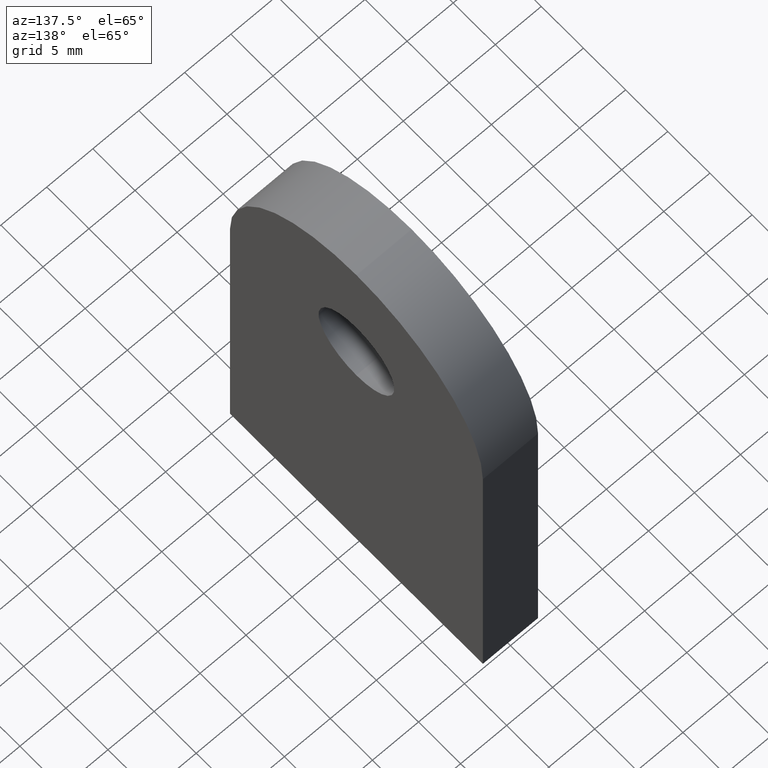
[diagram: clean part render]
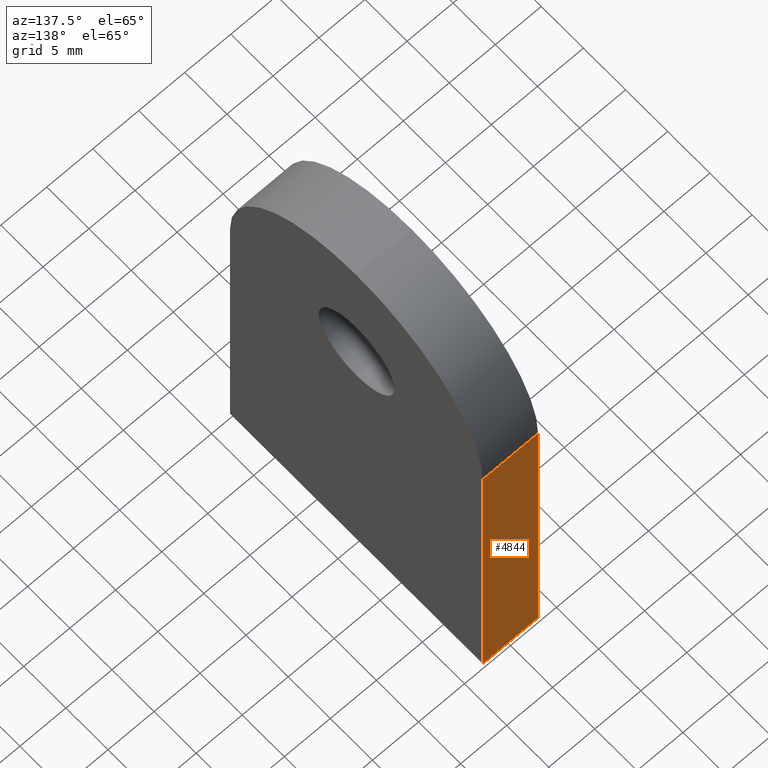
[diagram: same view with one face highlighted and labeled with its STEP entity id]
A machine part, auxiliary view. The second image highlights one B-rep face of the part: STEP entity #4844.
In plain terms, the highlighted planar face has unit normal (-0, 1, 0).
Its self-contained STEP definition (entity closure, byte-faithful):
#279 = CARTESIAN_POINT ( 'NONE',  ( 3.000000000000000000, 15.00000000000000000, -3.061616997868383000E-015 ) ) ;
#1423 = EDGE_CURVE ( 'NONE', #7588, #4917, #6426, .T. ) ;
#2302 = DIRECTION ( 'NONE',  ( 0.0000000000000000000, 4.956352788505163400E-017, -1.000000000000000000 ) ) ;
#4240 = CARTESIAN_POINT ( 'NONE',  ( 3.000000000000000000, 14.99999999999999800, 34.99999999999999300 ) ) ;
#4279 = FACE_OUTER_BOUND ( 'NONE', #11081, .T. ) ;
#4642 = ORIENTED_EDGE ( 'NONE', *, *, #1423, .T. ) ;
#4725 = CARTESIAN_POINT ( 'NONE',  ( 3.000000000000000000, 15.00000000000000000, -3.061616997868383000E-015 ) ) ;
#4844 = ADVANCED_FACE ( 'NONE', ( #4279 ), #9749, .T. ) ;
#4917 = VERTEX_POINT ( 'NONE', #10809 ) ;
#5012 = CARTESIAN_POINT ( 'NONE',  ( 3.000000000000000000, 14.99999999999999800, 34.99999999999999300 ) ) ;
#5058 = DIRECTION ( 'NONE',  ( 0.0000000000000000000, -4.956352788505162800E-017, 1.000000000000000000 ) ) ;
#5290 = EDGE_CURVE ( 'NONE', #6488, #4917, #12214, .T. ) ;
#5378 = LINE ( 'NONE', #8521, #7600 ) ;
#5937 = EDGE_CURVE ( 'NONE', #11702, #7588, #6522, .T. ) ;
#6210 = VECTOR ( 'NONE', #2302, 1000.000000000000000 ) ;
#6426 = LINE ( 'NONE', #4725, #10606 ) ;
#6488 = VERTEX_POINT ( 'NONE', #6605 ) ;
#6522 = LINE ( 'NONE', #4240, #6210 ) ;
#6605 = CARTESIAN_POINT ( 'NONE',  ( -3.000000000000000000, 14.99999999999999800, 34.99999999999999300 ) ) ;
#7122 = VECTOR ( 'NONE', #11334, 1000.000000000000000 ) ;
#7191 = AXIS2_PLACEMENT_3D ( 'NONE', #5012, #9826, #5058 ) ;
#7588 = VERTEX_POINT ( 'NONE', #279 ) ;
#7600 = VECTOR ( 'NONE', #10385, 1000.000000000000000 ) ;
#8521 = CARTESIAN_POINT ( 'NONE',  ( 3.000000000000000000, 14.99999999999999800, 34.99999999999999300 ) ) ;
#9413 = CARTESIAN_POINT ( 'NONE',  ( -3.000000000000000000, 14.99999999999999800, 34.99999999999999300 ) ) ;
#9683 = ORIENTED_EDGE ( 'NONE', *, *, #5290, .F. ) ;
#9749 = PLANE ( 'NONE',  #7191 ) ;
#9826 = DIRECTION ( 'NONE',  ( -0.0000000000000000000, 1.000000000000000000, 4.956352788505162800E-017 ) ) ;
#10385 = DIRECTION ( 'NONE',  ( -1.000000000000000000, -0.0000000000000000000, -0.0000000000000000000 ) ) ;
#10606 = VECTOR ( 'NONE', #12385, 1000.000000000000000 ) ;
#10809 = CARTESIAN_POINT ( 'NONE',  ( -3.000000000000000000, 15.00000000000000000, -3.061616997868383000E-015 ) ) ;
#10859 = EDGE_CURVE ( 'NONE', #11702, #6488, #5378, .T. ) ;
#11081 = EDGE_LOOP ( 'NONE', ( #9683, #12304, #11103, #4642 ) ) ;
#11103 = ORIENTED_EDGE ( 'NONE', *, *, #5937, .T. ) ;
#11261 = CARTESIAN_POINT ( 'NONE',  ( 3.000000000000000000, 14.99999999999999800, 34.99999999999999300 ) ) ;
#11334 = DIRECTION ( 'NONE',  ( 0.0000000000000000000, 4.956352788505163400E-017, -1.000000000000000000 ) ) ;
#11702 = VERTEX_POINT ( 'NONE', #11261 ) ;
#12214 = LINE ( 'NONE', #9413, #7122 ) ;
#12304 = ORIENTED_EDGE ( 'NONE', *, *, #10859, .F. ) ;
#12385 = DIRECTION ( 'NONE',  ( -1.000000000000000000, -0.0000000000000000000, -0.0000000000000000000 ) ) ;